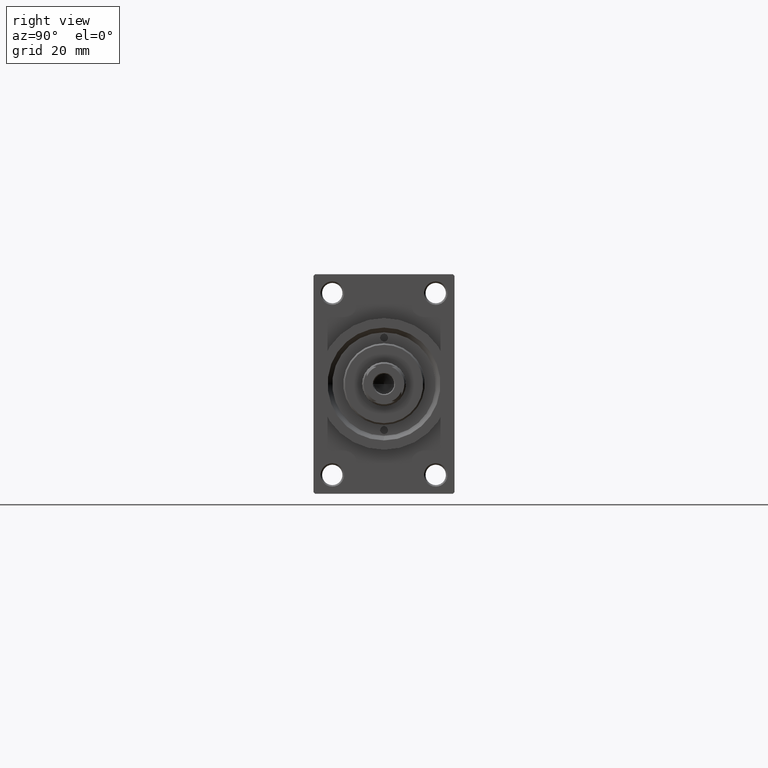
[diagram: clean part render]
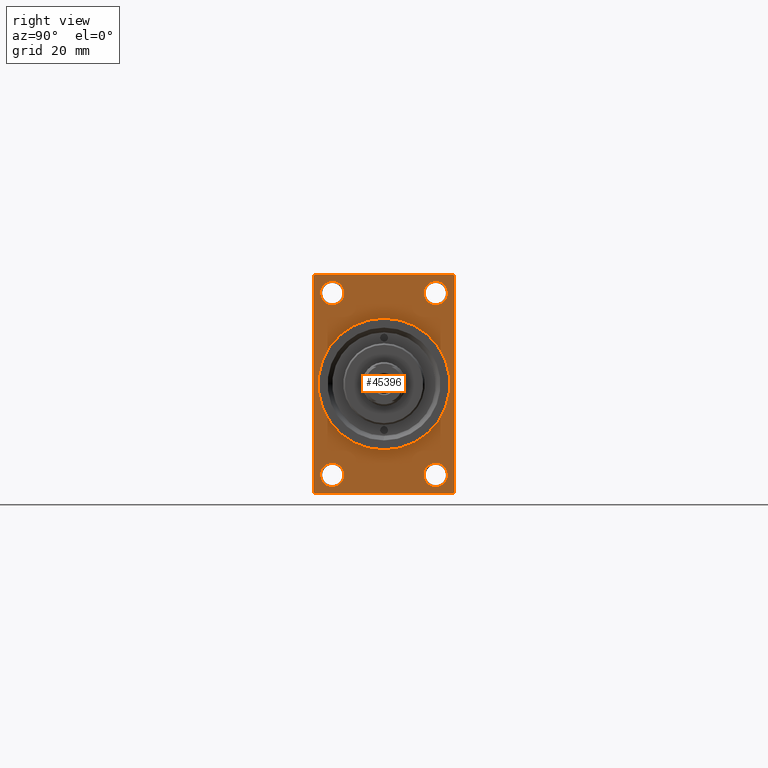
[diagram: same view with one face highlighted and labeled with its STEP entity id]
A machine part, right view. The second image highlights one B-rep face of the part: STEP entity #45396.
In plain terms, the highlighted planar face has unit normal (-1, 0, 0).
Its self-contained STEP definition (entity closure, byte-faithful):
#344 = LINE ( 'NONE', #7781, #12759 ) ;
#527 = DIRECTION ( 'NONE',  ( -1.000000000000000000, -0.000000000000000000, -0.000000000000000000 ) ) ;
#584 = DIRECTION ( 'NONE',  ( 0.000000000000000000, 0.7071067811865474617, -0.7071067811865474617 ) ) ;
#704 = CIRCLE ( 'NONE', #33595, 21.00000000000000000 ) ;
#919 = CIRCLE ( 'NONE', #32282, 3.750000000000169642 ) ;
#966 = ORIENTED_EDGE ( 'NONE', *, *, #3657, .F. ) ;
#1055 = EDGE_CURVE ( 'NONE', #30657, #43061, #24881, .T. ) ;
#1151 = ORIENTED_EDGE ( 'NONE', *, *, #33768, .T. ) ;
#1163 = EDGE_CURVE ( 'NONE', #9526, #39833, #47367, .T. ) ;
#1494 = EDGE_CURVE ( 'NONE', #22770, #30657, #37908, .T. ) ;
#1699 = EDGE_LOOP ( 'NONE', ( #4006, #1151 ) ) ;
#1979 = CARTESIAN_POINT ( 'NONE',  ( 173.0000000000000284, 16.50000000000000000, 29.00000000000000355 ) ) ;
#2137 = CARTESIAN_POINT ( 'NONE',  ( 173.0000000000000284, 16.50000000000000000, -28.99999999999999289 ) ) ;
#2332 = CARTESIAN_POINT ( 'NONE',  ( 173.0000000000000284, 16.50000000000000000, -25.24999999999982592 ) ) ;
#2574 = CARTESIAN_POINT ( 'NONE',  ( 173.0000000000000284, 16.50000000000000000, 29.00000000000000355 ) ) ;
#2763 = AXIS2_PLACEMENT_3D ( 'NONE', #3115, #2878, #14845 ) ;
#2878 = DIRECTION ( 'NONE',  ( -1.000000000000000000, -0.000000000000000000, -0.000000000000000000 ) ) ;
#3033 = CARTESIAN_POINT ( 'NONE',  ( 173.0000000000000284, 16.50000000000000000, 32.75000000000017764 ) ) ;
#3115 = CARTESIAN_POINT ( 'NONE',  ( 173.0000000000000284, -16.50000000000000000, 29.00000000000000711 ) ) ;
#3245 = DIRECTION ( 'NONE',  ( -1.000000000000000000, -0.000000000000000000, -0.000000000000000000 ) ) ;
#3657 = EDGE_CURVE ( 'NONE', #45774, #39833, #32776, .T. ) ;
#3811 = AXIS2_PLACEMENT_3D ( 'NONE', #1979, #41725, #34562 ) ;
#4006 = ORIENTED_EDGE ( 'NONE', *, *, #37052, .T. ) ;
#4211 = PLANE ( 'NONE',  #32165 ) ;
#4326 = AXIS2_PLACEMENT_3D ( 'NONE', #12029, #19455, #18747 ) ;
#4359 = CARTESIAN_POINT ( 'NONE',  ( 173.0000000000000284, -16.50000000000000000, -28.99999999999999289 ) ) ;
#4570 = VECTOR ( 'NONE', #13356, 1000.000000000000000 ) ;
#4683 = CIRCLE ( 'NONE', #31462, 3.750000000000166533 ) ;
#4874 = CARTESIAN_POINT ( 'NONE',  ( 173.0000000000000284, 22.49999999999999645, 34.50000000000000000 ) ) ;
#5885 = CARTESIAN_POINT ( 'NONE',  ( 173.0000000000000284, 16.50000000000000000, 25.24999999999983658 ) ) ;
#5966 = DIRECTION ( 'NONE',  ( 0.000000000000000000, 0.000000000000000000, 1.000000000000000000 ) ) ;
#6219 = DIRECTION ( 'NONE',  ( -0.000000000000000000, -0.7071067811865279218, -0.7071067811865671127 ) ) ;
#6223 = CARTESIAN_POINT ( 'NONE',  ( 173.0000000000000284, -22.50000000000000355, 35.00000000000000000 ) ) ;
#6607 = LINE ( 'NONE', #18113, #21099 ) ;
#6874 = DIRECTION ( 'NONE',  ( -1.000000000000000000, 0.000000000000000000, -0.000000000000000000 ) ) ;
#6934 = EDGE_LOOP ( 'NONE', ( #8028, #26835, #18426, #24301, #966, #11276, #43288, #22363 ) ) ;
#7153 = ORIENTED_EDGE ( 'NONE', *, *, #31171, .T. ) ;
#7378 = EDGE_LOOP ( 'NONE', ( #9360, #37724 ) ) ;
#7464 = ORIENTED_EDGE ( 'NONE', *, *, #40824, .T. ) ;
#7781 = CARTESIAN_POINT ( 'NONE',  ( 173.0000000000000284, -22.00000000000000355, -35.00000000000000000 ) ) ;
#7796 = CARTESIAN_POINT ( 'NONE',  ( 173.0000000000000284, 22.49999999999999645, -34.50000000000000000 ) ) ;
#7815 = FACE_BOUND ( 'NONE', #29538, .T. ) ;
#8028 = ORIENTED_EDGE ( 'NONE', *, *, #15991, .T. ) ;
#8814 = DIRECTION ( 'NONE',  ( 1.000000000000000000, 0.000000000000000000, 0.000000000000000000 ) ) ;
#9360 = ORIENTED_EDGE ( 'NONE', *, *, #9728, .F. ) ;
#9526 = VERTEX_POINT ( 'NONE', #9913 ) ;
#9728 = EDGE_CURVE ( 'NONE', #27369, #28927, #704, .T. ) ;
#9913 = CARTESIAN_POINT ( 'NONE',  ( 173.0000000000000284, 22.00000000000002132, -35.00000000000000000 ) ) ;
#10047 = DIRECTION ( 'NONE',  ( 0.000000000000000000, 0.000000000000000000, -1.000000000000000000 ) ) ;
#10188 = CARTESIAN_POINT ( 'NONE',  ( 173.0000000000000284, -21.99999999999998934, -35.00000000000000000 ) ) ;
#10452 = ORIENTED_EDGE ( 'NONE', *, *, #30265, .T. ) ;
#11276 = ORIENTED_EDGE ( 'NONE', *, *, #29832, .T. ) ;
#11335 = EDGE_CURVE ( 'NONE', #9526, #12382, #34666, .T. ) ;
#11656 = FACE_OUTER_BOUND ( 'NONE', #6934, .T. ) ;
#11796 = EDGE_CURVE ( 'NONE', #44225, #25284, #12253, .T. ) ;
#12029 = CARTESIAN_POINT ( 'NONE',  ( 173.0000000000000284, 16.50000000000000000, -28.99999999999999289 ) ) ;
#12253 = CIRCLE ( 'NONE', #3811, 3.750000000000169642 ) ;
#12382 = VERTEX_POINT ( 'NONE', #10188 ) ;
#12759 = VECTOR ( 'NONE', #584, 1000.000000000000114 ) ;
#13356 = DIRECTION ( 'NONE',  ( 0.000000000000000000, -1.000000000000000000, 0.000000000000000000 ) ) ;
#14324 = CARTESIAN_POINT ( 'NONE',  ( 173.0000000000000284, -22.50000000000000355, -34.50000000000000000 ) ) ;
#14845 = DIRECTION ( 'NONE',  ( 0.000000000000000000, 0.000000000000000000, 1.000000000000000000 ) ) ;
#15115 = CARTESIAN_POINT ( 'NONE',  ( 173.0000000000000284, 21.99999999999999645, 35.00000000000000000 ) ) ;
#15247 = DIRECTION ( 'NONE',  ( -0.000000000000000000, 0.000000000000000000, 1.000000000000000000 ) ) ;
#15991 = EDGE_CURVE ( 'NONE', #43061, #35359, #24429, .T. ) ;
#16697 = VECTOR ( 'NONE', #10047, 1000.000000000000000 ) ;
#17056 = VERTEX_POINT ( 'NONE', #21389 ) ;
#17409 = AXIS2_PLACEMENT_3D ( 'NONE', #18591, #3245, #29105 ) ;
#17670 = DIRECTION ( 'NONE',  ( -1.000000000000000000, -0.000000000000000000, -0.000000000000000000 ) ) ;
#17675 = EDGE_LOOP ( 'NONE', ( #7464, #10452 ) ) ;
#18061 = CIRCLE ( 'NONE', #2763, 3.750000000000166533 ) ;
#18113 = CARTESIAN_POINT ( 'NONE',  ( 173.0000000000000284, 21.99999999999999645, 35.00000000000000000 ) ) ;
#18426 = ORIENTED_EDGE ( 'NONE', *, *, #11335, .F. ) ;
#18591 = CARTESIAN_POINT ( 'NONE',  ( 173.0000000000000284, -16.50000000000000000, 29.00000000000000711 ) ) ;
#18747 = DIRECTION ( 'NONE',  ( 0.000000000000000000, 0.000000000000000000, 1.000000000000000000 ) ) ;
#18766 = DIRECTION ( 'NONE',  ( 0.000000000000000000, 0.000000000000000000, 1.000000000000000000 ) ) ;
#18853 = EDGE_CURVE ( 'NONE', #45284, #27497, #4683, .T. ) ;
#19061 = AXIS2_PLACEMENT_3D ( 'NONE', #45661, #31309, #38009 ) ;
#19238 = CARTESIAN_POINT ( 'NONE',  ( 173.0000000000000284, -16.50000000000000000, 32.75000000000017764 ) ) ;
#19455 = DIRECTION ( 'NONE',  ( -1.000000000000000000, -0.000000000000000000, -0.000000000000000000 ) ) ;
#20144 = DIRECTION ( 'NONE',  ( 0.000000000000000000, 0.000000000000000000, -1.000000000000000000 ) ) ;
#20246 = EDGE_CURVE ( 'NONE', #25284, #44225, #919, .T. ) ;
#20752 = DIRECTION ( 'NONE',  ( 0.000000000000000000, -0.7071067811865474617, 0.7071067811865474617 ) ) ;
#21099 = VECTOR ( 'NONE', #20752, 1000.000000000000114 ) ;
#21389 = CARTESIAN_POINT ( 'NONE',  ( 173.0000000000000284, -16.50000000000000000, -25.24999999999982592 ) ) ;
#22104 = DIRECTION ( 'NONE',  ( 0.000000000000000000, 0.000000000000000000, -1.000000000000000000 ) ) ;
#22363 = ORIENTED_EDGE ( 'NONE', *, *, #1055, .T. ) ;
#22433 = FACE_BOUND ( 'NONE', #7378, .T. ) ;
#22770 = VERTEX_POINT ( 'NONE', #15115 ) ;
#23862 = VECTOR ( 'NONE', #20144, 1000.000000000000000 ) ;
#24301 = ORIENTED_EDGE ( 'NONE', *, *, #1163, .T. ) ;
#24429 = LINE ( 'NONE', #6223, #23862 ) ;
#24479 = ORIENTED_EDGE ( 'NONE', *, *, #11796, .T. ) ;
#24644 = CARTESIAN_POINT ( 'NONE',  ( 173.0000000000000284, 22.49999999999999645, 35.00000000000000000 ) ) ;
#24881 = LINE ( 'NONE', #31841, #44896 ) ;
#24944 = CIRCLE ( 'NONE', #44796, 3.750000000000166533 ) ;
#25284 = VERTEX_POINT ( 'NONE', #5885 ) ;
#25488 = CARTESIAN_POINT ( 'NONE',  ( 173.0000000000000284, -22.50000000000000355, 34.50000000000000000 ) ) ;
#25683 = DIRECTION ( 'NONE',  ( 1.000000000000000000, 0.000000000000000000, 0.000000000000000000 ) ) ;
#25772 = FACE_BOUND ( 'NONE', #1699, .T. ) ;
#25996 = AXIS2_PLACEMENT_3D ( 'NONE', #37545, #8814, #30609 ) ;
#26010 = FACE_BOUND ( 'NONE', #17675, .T. ) ;
#26813 = VERTEX_POINT ( 'NONE', #40266 ) ;
#26835 = ORIENTED_EDGE ( 'NONE', *, *, #35772, .T. ) ;
#27369 = VERTEX_POINT ( 'NONE', #46338 ) ;
#27497 = VERTEX_POINT ( 'NONE', #37226 ) ;
#28842 = CIRCLE ( 'NONE', #17409, 3.750000000000166533 ) ;
#28927 = VERTEX_POINT ( 'NONE', #37986 ) ;
#28958 = ORIENTED_EDGE ( 'NONE', *, *, #20246, .T. ) ;
#29105 = DIRECTION ( 'NONE',  ( 0.000000000000000000, 0.000000000000000000, 1.000000000000000000 ) ) ;
#29538 = EDGE_LOOP ( 'NONE', ( #28958, #24479 ) ) ;
#29832 = EDGE_CURVE ( 'NONE', #45774, #22770, #6607, .T. ) ;
#30026 = CARTESIAN_POINT ( 'NONE',  ( 173.0000000000000284, 22.49999999999999645, 35.00000000000000000 ) ) ;
#30265 = EDGE_CURVE ( 'NONE', #17056, #26813, #24944, .T. ) ;
#30312 = VERTEX_POINT ( 'NONE', #19238 ) ;
#30413 = CARTESIAN_POINT ( 'NONE',  ( 173.0000000000000284, -22.00000000000001776, 35.00000000000000000 ) ) ;
#30609 = DIRECTION ( 'NONE',  ( 0.000000000000000000, 0.000000000000000000, -1.000000000000000000 ) ) ;
#30657 = VERTEX_POINT ( 'NONE', #30413 ) ;
#31171 = EDGE_CURVE ( 'NONE', #27497, #45284, #32612, .T. ) ;
#31309 = DIRECTION ( 'NONE',  ( -1.000000000000000000, -0.000000000000000000, -0.000000000000000000 ) ) ;
#31462 = AXIS2_PLACEMENT_3D ( 'NONE', #2137, #34722, #5966 ) ;
#31787 = DIRECTION ( 'NONE',  ( 0.000000000000000000, 0.000000000000000000, 1.000000000000000000 ) ) ;
#31841 = CARTESIAN_POINT ( 'NONE',  ( 173.0000000000000284, -22.50000000000000355, 34.50000000000000000 ) ) ;
#32165 = AXIS2_PLACEMENT_3D ( 'NONE', #33433, #6874, #15247 ) ;
#32282 = AXIS2_PLACEMENT_3D ( 'NONE', #2574, #17670, #31787 ) ;
#32612 = CIRCLE ( 'NONE', #4326, 3.750000000000166533 ) ;
#32776 = LINE ( 'NONE', #24644, #16697 ) ;
#33433 = CARTESIAN_POINT ( 'NONE',  ( 173.0000000000000284, 0.000000000000000000, 0.000000000000000000 ) ) ;
#33595 = AXIS2_PLACEMENT_3D ( 'NONE', #43869, #25683, #22104 ) ;
#33673 = CARTESIAN_POINT ( 'NONE',  ( 173.0000000000000284, -16.50000000000000000, 25.24999999999984368 ) ) ;
#33768 = EDGE_CURVE ( 'NONE', #30312, #42039, #18061, .T. ) ;
#34562 = DIRECTION ( 'NONE',  ( 0.000000000000000000, 0.000000000000000000, 1.000000000000000000 ) ) ;
#34666 = LINE ( 'NONE', #38941, #4570 ) ;
#34722 = DIRECTION ( 'NONE',  ( -1.000000000000000000, -0.000000000000000000, -0.000000000000000000 ) ) ;
#35359 = VERTEX_POINT ( 'NONE', #14324 ) ;
#35719 = VECTOR ( 'NONE', #36370, 1000.000000000000000 ) ;
#35772 = EDGE_CURVE ( 'NONE', #35359, #12382, #344, .T. ) ;
#35852 = CIRCLE ( 'NONE', #19061, 3.750000000000166533 ) ;
#36370 = DIRECTION ( 'NONE',  ( -0.000000000000000000, 0.7071067811865279218, 0.7071067811865671127 ) ) ;
#37052 = EDGE_CURVE ( 'NONE', #42039, #30312, #28842, .T. ) ;
#37226 = CARTESIAN_POINT ( 'NONE',  ( 173.0000000000000284, 16.50000000000000000, -32.75000000000017053 ) ) ;
#37545 = CARTESIAN_POINT ( 'NONE',  ( 173.0000000000000284, 0.000000000000000000, 0.000000000000000000 ) ) ;
#37724 = ORIENTED_EDGE ( 'NONE', *, *, #44086, .F. ) ;
#37908 = LINE ( 'NONE', #30026, #41820 ) ;
#37986 = CARTESIAN_POINT ( 'NONE',  ( 173.0000000000000284, 2.571758278209441661E-15, -21.00000000000000000 ) ) ;
#38009 = DIRECTION ( 'NONE',  ( 0.000000000000000000, 0.000000000000000000, 1.000000000000000000 ) ) ;
#38275 = EDGE_LOOP ( 'NONE', ( #7153, #41955 ) ) ;
#38941 = CARTESIAN_POINT ( 'NONE',  ( 173.0000000000000284, 22.49999999999999645, -35.00000000000000000 ) ) ;
#39833 = VERTEX_POINT ( 'NONE', #7796 ) ;
#40266 = CARTESIAN_POINT ( 'NONE',  ( 173.0000000000000284, -16.50000000000000000, -32.75000000000017053 ) ) ;
#40413 = CARTESIAN_POINT ( 'NONE',  ( 173.0000000000000284, 22.49999999999999645, -34.50000000000000000 ) ) ;
#40824 = EDGE_CURVE ( 'NONE', #26813, #17056, #35852, .T. ) ;
#41725 = DIRECTION ( 'NONE',  ( -1.000000000000000000, -0.000000000000000000, -0.000000000000000000 ) ) ;
#41820 = VECTOR ( 'NONE', #44366, 1000.000000000000000 ) ;
#41955 = ORIENTED_EDGE ( 'NONE', *, *, #18853, .T. ) ;
#42039 = VERTEX_POINT ( 'NONE', #33673 ) ;
#43061 = VERTEX_POINT ( 'NONE', #25488 ) ;
#43288 = ORIENTED_EDGE ( 'NONE', *, *, #1494, .T. ) ;
#43869 = CARTESIAN_POINT ( 'NONE',  ( 173.0000000000000284, 0.000000000000000000, 0.000000000000000000 ) ) ;
#44086 = EDGE_CURVE ( 'NONE', #28927, #27369, #46626, .T. ) ;
#44225 = VERTEX_POINT ( 'NONE', #3033 ) ;
#44366 = DIRECTION ( 'NONE',  ( 0.000000000000000000, -1.000000000000000000, 0.000000000000000000 ) ) ;
#44428 = FACE_BOUND ( 'NONE', #38275, .T. ) ;
#44796 = AXIS2_PLACEMENT_3D ( 'NONE', #4359, #527, #18766 ) ;
#44896 = VECTOR ( 'NONE', #6219, 1000.000000000000000 ) ;
#45284 = VERTEX_POINT ( 'NONE', #2332 ) ;
#45396 = ADVANCED_FACE ( 'NONE', ( #25772, #26010, #44428, #7815, #22433, #11656 ), #4211, .F. ) ;
#45661 = CARTESIAN_POINT ( 'NONE',  ( 173.0000000000000284, -16.50000000000000000, -28.99999999999999289 ) ) ;
#45774 = VERTEX_POINT ( 'NONE', #4874 ) ;
#46338 = CARTESIAN_POINT ( 'NONE',  ( 173.0000000000000284, 0.000000000000000000, 21.00000000000000000 ) ) ;
#46626 = CIRCLE ( 'NONE', #25996, 21.00000000000000000 ) ;
#47367 = LINE ( 'NONE', #40413, #35719 ) ;